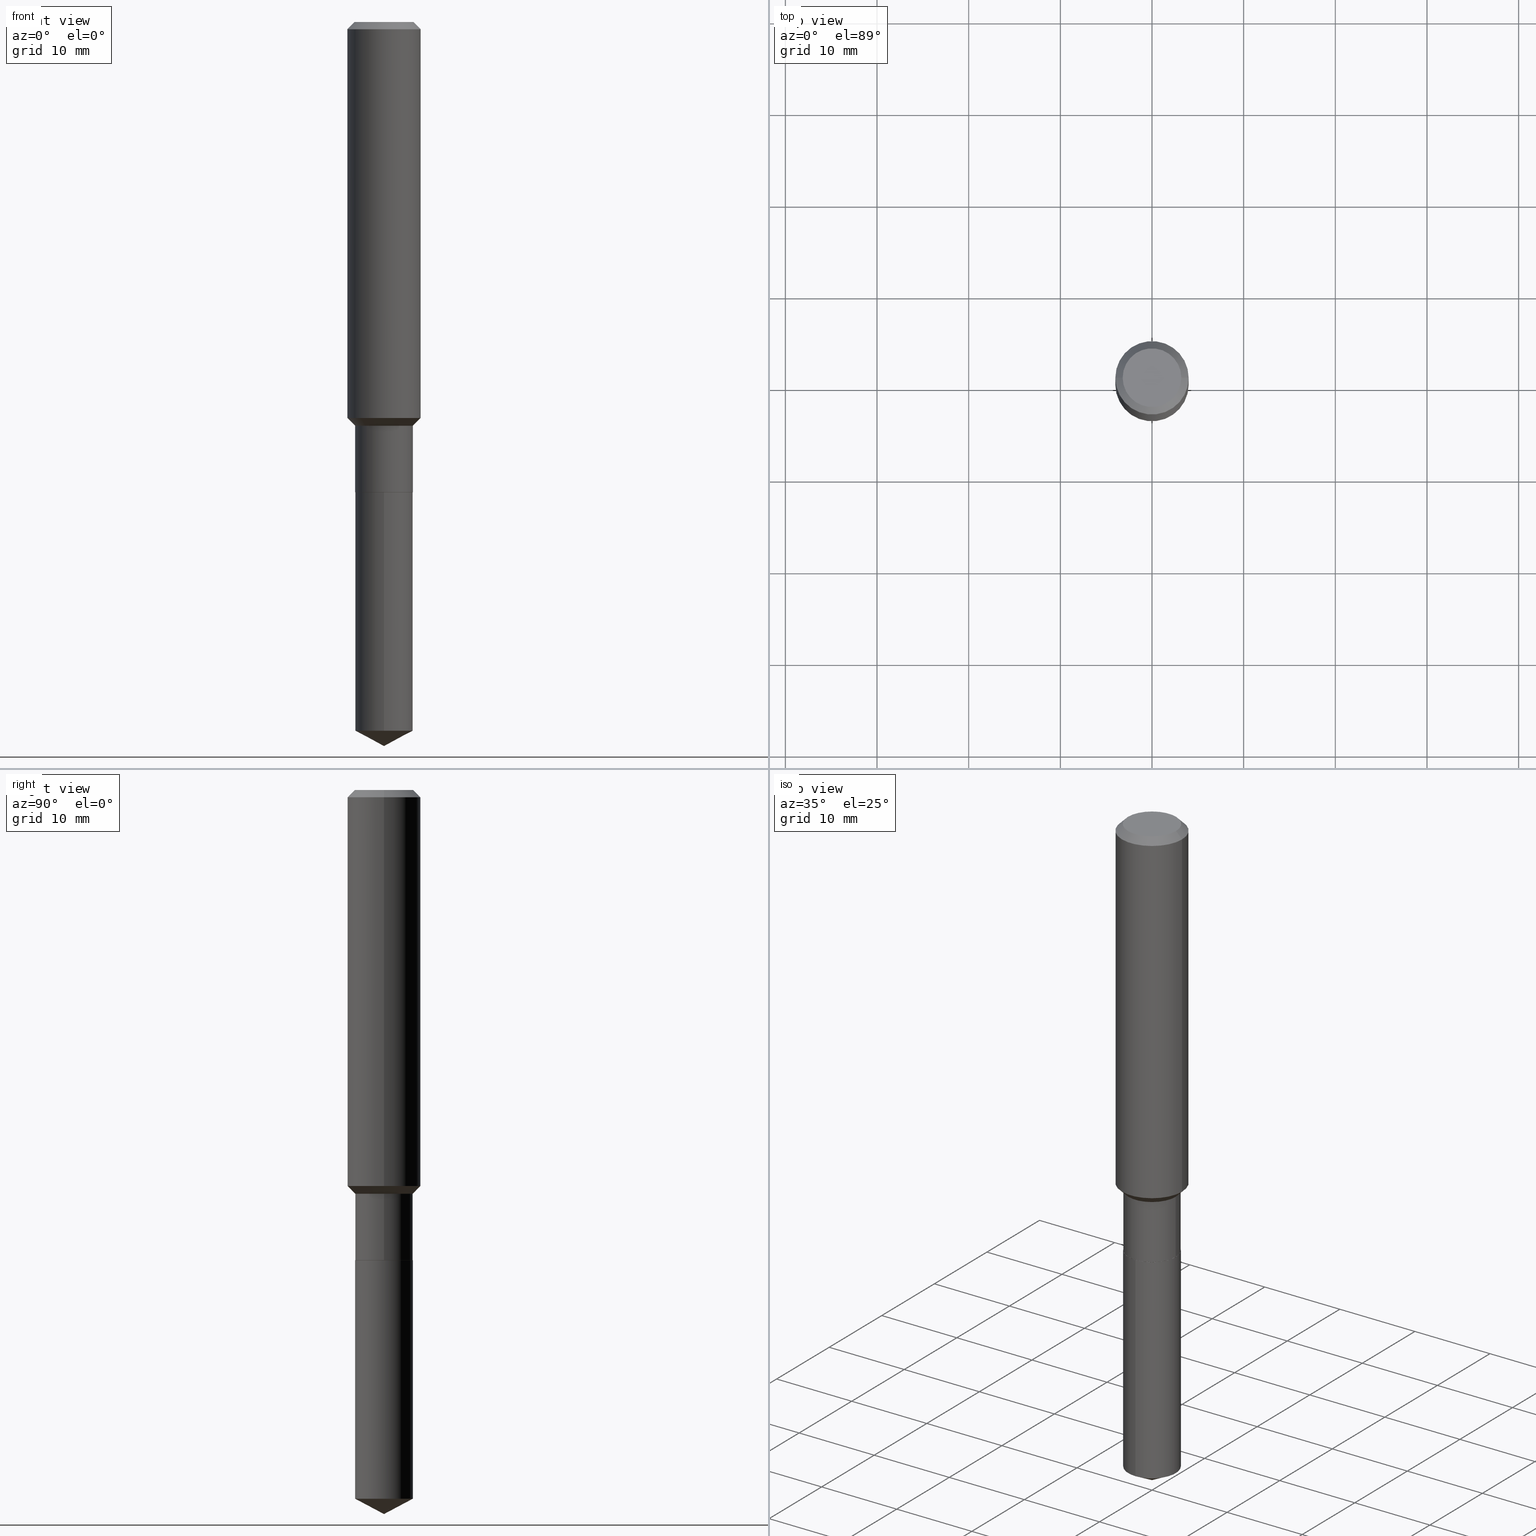
[diagram: canonical four-view strip — front | top / right | iso, engineering-drawing reading convention]
A machine part, canonical four-view strip (front | top / right | iso — engineering-drawing reading convention). The complete STEP part file that produces these views, byte-faithful:
ISO-10303-21;
HEADER;
FILE_DESCRIPTION (( 'STEP AP203' ),
    '1' );
FILE_NAME ('67633.STEP',
    '2024-04-25T07:49:21',
    ( '' ),
    ( '' ),
    'SwSTEP 2.0',
    'SolidWorks 2023',
    '' );
FILE_SCHEMA (( 'CONFIG_CONTROL_DESIGN' ));
ENDSEC;

DATA;
#1 = AXIS2_PLACEMENT_3D ( 'NONE', #10, #430, #411 ) ;
#2 = AXIS2_PLACEMENT_3D ( 'NONE', #466, #470, #227 ) ;
#3 = FACE_OUTER_BOUND ( 'NONE', #378, .T. ) ;
#4 = DIRECTION ( 'NONE',  ( 2.445582886674495317E-29, -3.491317969089325236E-15, -1.000000000000000000 ) ) ;
#5 = CLOSED_SHELL ( 'NONE', ( #334, #99, #449, #82, #55, #103, #456, #314, #448, #237, #36, #339 ) ) ;
#6 = DIRECTION ( 'NONE',  ( 1.000000000000000000, -6.982962677686265133E-15, 0.000000000000000000 ) ) ;
#7 = PERSON_AND_ORGANIZATION ( #296, #421 ) ;
#8 = DIRECTION ( 'NONE',  ( -2.445468806185136597E-29, 3.491481338843145583E-15, 1.000000000000000000 ) ) ;
#9 = ORIENTED_EDGE ( 'NONE', *, *, #368, .F. ) ;
#10 = CARTESIAN_POINT ( 'NONE',  ( 4.938868800971501707E-29, -7.051395711927616472E-15, -2.019600000000000062 ) ) ;
#11 = CARTESIAN_POINT ( 'NONE',  ( 4.159497892440299257E-29, -5.938660609238306710E-15, -1.700900000000000079 ) ) ;
#12 = ORIENTED_EDGE ( 'NONE', *, *, #368, .T. ) ;
#13 = EDGE_CURVE ( 'NONE', #319, #331, #168, .T. ) ;
#14 = FACE_OUTER_BOUND ( 'NONE', #21, .T. ) ;
#15 = CARTESIAN_POINT ( 'NONE',  ( 4.241421097447501822E-29, -6.055625234089552182E-15, -1.734400000000000164 ) ) ;
#16 = CONICAL_SURFACE ( 'NONE', #1, 0.1234999999999999987, 0.7853981633975678500 ) ;
#17 = FACE_OUTER_BOUND ( 'NONE', #51, .T. ) ;
#18 = ORIENTED_EDGE ( 'NONE', *, *, #432, .F. ) ;
#19 = DIRECTION ( 'NONE',  ( -6.982962677686265922E-15, -1.000000000000000000, 4.406206441393973340E-15 ) ) ;
#20 = DIRECTION ( 'NONE',  ( 1.000000000000000000, -6.982962677686269866E-15, 0.000000000000000000 ) ) ;
#21 = EDGE_LOOP ( 'NONE', ( #25, #264, #348, #317 ) ) ;
#22 = CARTESIAN_POINT ( 'NONE',  ( 7.444779400821120837E-29, -1.062883761907277980E-14, -3.044268030473976872 ) ) ;
#23 = AXIS2_PLACEMENT_3D ( 'NONE', #76, #447, #387 ) ;
#24 = CYLINDRICAL_SURFACE ( 'NONE', #77, 0.1575000000000000844 ) ;
#25 = ORIENTED_EDGE ( 'NONE', *, *, #46, .F. ) ;
#26 = CALENDAR_DATE ( 2024, 25, 4 ) ;
#27 = ORIENTED_EDGE ( 'NONE', *, *, #305, .F. ) ;
#28 = PLANE ( 'NONE',  #247 ) ;
#29 = MANIFOLD_SOLID_BREP ( 'Body-Move/Copy2[1]', #345 ) ;
#30 = ORIENTED_EDGE ( 'NONE', *, *, #149, .F. ) ;
#31 = CARTESIAN_POINT ( 'NONE',  ( 4.241421097447501822E-29, -6.055625234089552182E-15, -1.734400000000000164 ) ) ;
#32 = EDGE_CURVE ( 'NONE', #331, #256, #211, .T. ) ;
#33 = ORIENTED_EDGE ( 'NONE', *, *, #178, .F. ) ;
#34 = VECTOR ( 'NONE', #62, 39.37007874015748143 ) ;
#35 = CARTESIAN_POINT ( 'NONE',  ( 7.606251894135016417E-29, -1.085869714746161919E-14, -3.110199999999999854 ) ) ;
#36 = ADVANCED_FACE ( 'NONE', ( #272 ), #391, .F. ) ;
#37 = DIRECTION ( 'NONE',  ( 1.000000000000000000, -6.982962677686265922E-15, 0.000000000000000000 ) ) ;
#38 = ADVANCED_FACE ( 'NONE', ( #117 ), #84, .T. ) ;
#39 = AXIS2_PLACEMENT_3D ( 'NONE', #474, #469, #443 ) ;
#40 = EDGE_CURVE ( 'NONE', #98, #96, #121, .T. ) ;
#41 = AXIS2_PLACEMENT_3D ( 'NONE', #235, #370, #246 ) ;
#42 = CARTESIAN_POINT ( 'NONE',  ( 4.937646066568409466E-29, -7.049649971258195757E-15, -2.019099999999999895 ) ) ;
#43 = DIRECTION ( 'NONE',  ( 1.000000000000000000, -6.982962677686265133E-15, 0.000000000000000000 ) ) ;
#44 = DIRECTION ( 'NONE',  ( -2.445468806185136597E-29, 3.491481338843145583E-15, 1.000000000000000000 ) ) ;
#45 = CARTESIAN_POINT ( 'NONE',  ( 8.810729923425982785E-16, 0.1239999999999893548, -3.044268030473977760 ) ) ;
#46 = EDGE_CURVE ( 'NONE', #412, #171, #53, .T. ) ;
#47 = PERSON_AND_ORGANIZATION ( #296, #421 ) ;
#48 = VECTOR ( 'NONE', #292, 39.37007874015748143 ) ;
#49 = DIRECTION ( 'NONE',  ( -2.445468806185136597E-29, 3.491481338843145583E-15, 1.000000000000000000 ) ) ;
#50 = PERSON_AND_ORGANIZATION ( #296, #421 ) ;
#51 = EDGE_LOOP ( 'NONE', ( #54, #322, #277, #9 ) ) ;
#52 = CARTESIAN_POINT ( 'NONE',  ( 4.938868800971501707E-29, -7.051395711927616472E-15, -2.019600000000000062 ) ) ;
#53 = LINE ( 'NONE', #429, #451 ) ;
#54 = ORIENTED_EDGE ( 'NONE', *, *, #107, .T. ) ;
#55 = ADVANCED_FACE ( 'NONE', ( #120 ), #230, .T. ) ;
#56 = LINE ( 'NONE', #163, #213 ) ;
#57 = FACE_OUTER_BOUND ( 'NONE', #225, .T. ) ;
#58 = CARTESIAN_POINT ( 'NONE',  ( 4.938868800971501707E-29, -7.051395711927616472E-15, -2.019600000000000062 ) ) ;
#59 = CONICAL_SURFACE ( 'NONE', #140, 0.1575000000000000011, 0.7853981633974449483 ) ;
#60 = CIRCLE ( 'NONE', #302, 0.1239999999999999991 ) ;
#61 = LINE ( 'NONE', #205, #179 ) ;
#62 = DIRECTION ( 'NONE',  ( -2.445468806185136877E-29, 3.491481338843145188E-15, 1.000000000000000000 ) ) ;
#63 = VERTEX_POINT ( 'NONE', #114 ) ;
#64 = APPROVAL_DATE_TIME ( #413, #423 ) ;
#65 = PRODUCT_DEFINITION ( 'UNKNOWN', '', #89, #282 ) ;
#66 = ORIENTED_EDGE ( 'NONE', *, *, #149, .T. ) ;
#67 = COORDINATED_UNIVERSAL_TIME_OFFSET ( 5, 0, .BEHIND. ) ;
#68 = CONICAL_SURFACE ( 'NONE', #372, 74.04434902938348273, 1.082104136236486269 ) ;
#69 = EDGE_LOOP ( 'NONE', ( #360, #425, #18, #30 ) ) ;
#70 = DIRECTION ( 'NONE',  ( 1.000000000000000000, -6.982962677686265133E-15, 0.000000000000000000 ) ) ;
#71 = ORIENTED_EDGE ( 'NONE', *, *, #217, .F. ) ;
#72 = CC_DESIGN_PERSON_AND_ORGANIZATION_ASSIGNMENT ( #208, #253, ( #65 ) ) ;
#73 = DIRECTION ( 'NONE',  ( -2.445582886674495597E-29, 3.491317969089325236E-15, 1.000000000000000000 ) ) ;
#74 = ORIENTED_EDGE ( 'NONE', *, *, #320, .F. ) ;
#75 = PERSON_AND_ORGANIZATION_ROLE ( 'classification_officer' ) ;
#76 = CARTESIAN_POINT ( 'NONE',  ( 0.000000000000000000, 0.000000000000000000, 0.000000000000000000 ) ) ;
#77 = AXIS2_PLACEMENT_3D ( 'NONE', #255, #215, #136 ) ;
#78 = EDGE_CURVE ( 'NONE', #176, #297, #61, .T. ) ;
#79 = CONICAL_SURFACE ( 'NONE', #328, 0.1239999999999999575, 0.7853981633974508325 ) ;
#80 = AXIS2_PLACEMENT_3D ( 'NONE', #118, #242, #203 ) ;
#81 = CARTESIAN_POINT ( 'NONE',  ( 0.000000000000000000, 0.000000000000000000, 0.000000000000000000 ) ) ;
#82 = ADVANCED_FACE ( 'NONE', ( #422 ), #79, .T. ) ;
#83 = PLANE ( 'NONE',  #214 ) ;
#84 = CYLINDRICAL_SURFACE ( 'NONE', #300, 0.1239999999999999991 ) ;
#85 = CARTESIAN_POINT ( 'NONE',  ( 4.938868800971501707E-29, -7.051395711927616472E-15, -2.019600000000000062 ) ) ;
#86 = EDGE_CURVE ( 'NONE', #299, #129, #201, .T. ) ;
#87 = VERTEX_POINT ( 'NONE', #35 ) ;
#88 = CIRCLE ( 'NONE', #291, 0.1239999999999999991 ) ;
#89 = PRODUCT_DEFINITION_FORMATION_WITH_SPECIFIED_SOURCE ( 'ANY', '', #398, .NOT_KNOWN. ) ;
#90 = CARTESIAN_POINT ( 'NONE',  ( -8.867676931677782645E-28, 1.265944362609570079E-13, 36.25987874015748247 ) ) ;
#91 = DIRECTION ( 'NONE',  ( 1.000000000000000000, -6.982962677686265922E-15, 0.000000000000000000 ) ) ;
#92 = ORIENTED_EDGE ( 'NONE', *, *, #184, .T. ) ;
#93 = CARTESIAN_POINT ( 'NONE',  ( 0.1239999999999999575, -6.921512606122648718E-15, -1.734400000000000164 ) ) ;
#94 = AXIS2_PLACEMENT_3D ( 'NONE', #444, #263, #37 ) ;
#95 = CIRCLE ( 'NONE', #388, 0.1575000000000000011 ) ;
#96 = VERTEX_POINT ( 'NONE', #350 ) ;
#97 = CC_DESIGN_PERSON_AND_ORGANIZATION_ASSIGNMENT ( #47, #190, ( #89 ) ) ;
#98 = VERTEX_POINT ( 'NONE', #307 ) ;
#99 = ADVANCED_FACE ( 'NONE', ( #267 ), #59, .T. ) ;
#100 = EDGE_LOOP ( 'NONE', ( #192, #428, #271 ) ) ;
#101 = APPROVAL_STATUS ( 'not_yet_approved' ) ;
#102 = AXIS2_PLACEMENT_3D ( 'NONE', #81, #161, #274 ) ;
#103 = ADVANCED_FACE ( 'NONE', ( #365 ), #400, .T. ) ;
#104 = ORIENTED_EDGE ( 'NONE', *, *, #236, .F. ) ;
#105 = VECTOR ( 'NONE', #321, 39.37007874015748143 ) ;
#106 = DIRECTION ( 'NONE',  ( -0.7071067811865493491, 7.493145998870360471E-15, 0.7071067811865457964 ) ) ;
#107 = EDGE_CURVE ( 'NONE', #256, #331, #440, .T. ) ;
#108 = DIRECTION ( 'NONE',  ( -2.445468806185136597E-29, 3.491481338843145583E-15, 1.000000000000000000 ) ) ;
#109 = ORIENTED_EDGE ( 'NONE', *, *, #78, .F. ) ;
#110 = CIRCLE ( 'NONE', #80, 0.1239999999999999991 ) ;
#111 = LINE ( 'NONE', #311, #326 ) ;
#112 = ORIENTED_EDGE ( 'NONE', *, *, #107, .F. ) ;
#113 = DIRECTION ( 'NONE',  ( 1.000000000000000000, -6.982962677686265922E-15, 4.876281427513067258E-29 ) ) ;
#114 = CARTESIAN_POINT ( 'NONE',  ( -0.1260000000000000009, 9.348441284752484904E-16, 3.860086710906114178E-18 ) ) ;
#115 = ADVANCED_FACE ( 'NONE', ( #436 ), #281, .T. ) ;
#116 = CARTESIAN_POINT ( 'NONE',  ( -0.1239999999999999991, 8.810729923425242242E-16, -6.099479511916082446E-30 ) ) ;
#117 = FACE_OUTER_BOUND ( 'NONE', #174, .T. ) ;
#118 = CARTESIAN_POINT ( 'NONE',  ( 4.938868800971501707E-29, -7.051395711927616472E-15, -2.019600000000000062 ) ) ;
#119 = DIRECTION ( 'NONE',  ( 1.000000000000000000, -6.982962677686265922E-15, 0.000000000000000000 ) ) ;
#120 = FACE_OUTER_BOUND ( 'NONE', #383, .T. ) ;
#121 = CIRCLE ( 'NONE', #417, 0.1234999999999999987 ) ;
#122 = VECTOR ( 'NONE', #276, 39.37007874015748143 ) ;
#123 = LINE ( 'NONE', #431, #105 ) ;
#124 = CIRCLE ( 'NONE', #420, 0.1234999999999999987 ) ;
#125 = EDGE_CURVE ( 'NONE', #331, #234, #123, .T. ) ;
#126 = CARTESIAN_POINT ( 'NONE',  ( 7.605791100222397431E-29, -1.085935703057125161E-14, -3.110199999999999854 ) ) ;
#127 = LINE ( 'NONE', #116, #122 ) ;
#128 = CARTESIAN_POINT ( 'NONE',  ( 4.241421097447501822E-29, -6.055625234089552182E-15, -1.734400000000000164 ) ) ;
#129 = VERTEX_POINT ( 'NONE', #152 ) ;
#130 = DIRECTION ( 'NONE',  ( -2.445468806185136597E-29, 3.491481338843145583E-15, 1.000000000000000000 ) ) ;
#131 = APPROVAL_PERSON_ORGANIZATION ( #50, #454, #158 ) ;
#132 = ORIENTED_EDGE ( 'NONE', *, *, #146, .F. ) ;
#133 = COORDINATED_UNIVERSAL_TIME_OFFSET ( 5, 0, .BEHIND. ) ;
#134 = ORIENTED_EDGE ( 'NONE', *, *, #233, .F. ) ;
#135 = DIRECTION ( 'NONE',  ( -2.445468806185136877E-29, 3.491481338843145188E-15, 1.000000000000000000 ) ) ;
#136 = DIRECTION ( 'NONE',  ( 1.000000000000000000, -6.982962677686267499E-15, 4.876176775795936353E-29 ) ) ;
#137 = EDGE_LOOP ( 'NONE', ( #373, #450, #229, #216 ) ) ;
#138 = LENGTH_MEASURE_WITH_UNIT ( LENGTH_MEASURE( 0.02539999999999999897 ), #262 );
#139 = CARTESIAN_POINT ( 'NONE',  ( -0.1575000000000000011, -1.905216326883773903E-15, -0.03150000000000019451 ) ) ;
#140 = AXIS2_PLACEMENT_3D ( 'NONE', #157, #406, #284 ) ;
#141 = APPROVAL_PERSON_ORGANIZATION ( #143, #423, #342 ) ;
#142 = ORIENTED_EDGE ( 'NONE', *, *, #285, .T. ) ;
#143 = PERSON_AND_ORGANIZATION ( #296, #421 ) ;
#144 = DIMENSIONAL_EXPONENTS ( 1.000000000000000000, 0.000000000000000000, 0.000000000000000000, 0.000000000000000000, 0.000000000000000000, 0.000000000000000000, 0.000000000000000000 ) ;
#145 = ADVANCED_FACE ( 'NONE', ( #57 ), #83, .F. ) ;
#146 = EDGE_CURVE ( 'NONE', #96, #98, #124, .T. ) ;
#147 = AXIS2_PLACEMENT_3D ( 'NONE', #241, #316, #113 ) ;
#148 = CARTESIAN_POINT ( 'NONE',  ( 4.938868800971501707E-29, -7.051395711927616472E-15, -2.019600000000000062 ) ) ;
#149 = EDGE_CURVE ( 'NONE', #200, #486, #358, .T. ) ;
#150 = DIRECTION ( 'NONE',  ( -2.445468806185136597E-29, 3.491481338843145583E-15, 1.000000000000000000 ) ) ;
#151 = ORIENTED_EDGE ( 'NONE', *, *, #178, .T. ) ;
#152 = CARTESIAN_POINT ( 'NONE',  ( -0.1240000000000000269, -5.671564610331350140E-15, -2.019099999999999895 ) ) ;
#153 = ORIENTED_EDGE ( 'NONE', *, *, #169, .T. ) ;
#154 = SECURITY_CLASSIFICATION ( '', '', #361 ) ;
#155 = DIRECTION ( 'NONE',  ( -2.445582886674495597E-29, 3.491317969089325236E-15, 1.000000000000000000 ) ) ;
#156 = CARTESIAN_POINT ( 'NONE',  ( 4.938868800971501707E-29, -7.051395711927616472E-15, -2.019600000000000062 ) ) ;
#157 = CARTESIAN_POINT ( 'NONE',  ( 7.703226739483228723E-31, -1.099816621735597661E-16, -0.03150000000000019451 ) ) ;
#158 = APPROVAL_ROLE ( '' ) ;
#159 = ORIENTED_EDGE ( 'NONE', *, *, #169, .F. ) ;
#160 = EDGE_CURVE ( 'NONE', #171, #234, #238, .T. ) ;
#161 = DIRECTION ( 'NONE',  ( -2.445468806185136597E-29, 3.491481338843145583E-15, 1.000000000000000000 ) ) ;
#162 = CARTESIAN_POINT ( 'NONE',  ( 4.938868800971501707E-29, -7.051395711927616472E-15, -2.019600000000000062 ) ) ;
#163 = CARTESIAN_POINT ( 'NONE',  ( 7.606255934753707533E-29, -1.085869714746161919E-14, -3.110199999999999854 ) ) ;
#164 = DIRECTION ( 'NONE',  ( -6.982962677686265922E-15, -1.000000000000000000, 4.406206441393973340E-15 ) ) ;
#165 = AXIS2_PLACEMENT_3D ( 'NONE', #15, #187, #6 ) ;
#166 = FACE_OUTER_BOUND ( 'NONE', #137, .T. ) ;
#167 = DIRECTION ( 'NONE',  ( -2.445468806185136597E-29, 3.491481338843145583E-15, 1.000000000000000000 ) ) ;
#168 = LINE ( 'NONE', #453, #457 ) ;
#169 = EDGE_CURVE ( 'NONE', #319, #374, #260, .T. ) ;
#170 = APPLICATION_PROTOCOL_DEFINITION ( 'international standard', 'config_control_design', 1994, #363 ) ;
#171 = VERTEX_POINT ( 'NONE', #228 ) ;
#172 = DATE_AND_TIME ( #26, #476 ) ;
#173 = ORIENTED_EDGE ( 'NONE', *, *, #86, .T. ) ;
#174 = EDGE_LOOP ( 'NONE', ( #109, #151, #66, #382 ) ) ;
#175 = CARTESIAN_POINT ( 'NONE',  ( -8.658873720330475277E-16, -0.1240000000000070490, -2.019599999999999618 ) ) ;
#176 = VERTEX_POINT ( 'NONE', #45 ) ;
#177 = PERSON_AND_ORGANIZATION ( #296, #421 ) ;
#178 = EDGE_CURVE ( 'NONE', #176, #200, #88, .T. ) ;
#179 = VECTOR ( 'NONE', #224, 39.37007874015748143 ) ;
#180 = AXIS2_PLACEMENT_3D ( 'NONE', #128, #130, #43 ) ;
#181 = MANIFOLD_SOLID_BREP ( 'Body-Move/Copy2[2]', #5 ) ;
#182 = LOCAL_TIME ( 3, 49, 21.00000000000000000, #133 ) ;
#183 = VECTOR ( 'NONE', #369, 39.37007874015748143 ) ;
#184 = EDGE_CURVE ( 'NONE', #412, #63, #258, .T. ) ;
#185 = DIRECTION ( 'NONE',  ( -2.445468806185136597E-29, 3.491481338843145583E-15, 1.000000000000000000 ) ) ;
#186 = CYLINDRICAL_SURFACE ( 'NONE', #393, 0.1575000000000000844 ) ;
#187 = DIRECTION ( 'NONE',  ( -2.445468806185136597E-29, 3.491481338843145583E-15, 1.000000000000000000 ) ) ;
#188 = DIRECTION ( 'NONE',  ( -2.445468806185136597E-29, 3.491481338843145583E-15, 1.000000000000000000 ) ) ;
#189 = CC_DESIGN_APPROVAL ( #423, ( #65 ) ) ;
#190 = PERSON_AND_ORGANIZATION_ROLE ( 'design_supplier' ) ;
#191 = LINE ( 'NONE', #426, #335 ) ;
#192 = ORIENTED_EDGE ( 'NONE', *, *, #323, .F. ) ;
#193 = CC_DESIGN_DATE_AND_TIME_ASSIGNMENT ( #318, #371, ( #154 ) ) ;
#194 = APPROVAL_STATUS ( 'not_yet_approved' ) ;
#195 = EDGE_CURVE ( 'NONE', #63, #412, #273, .T. ) ;
#196 = APPROVAL_DATE_TIME ( #404, #454 ) ;
#197 = ORIENTED_EDGE ( 'NONE', *, *, #13, .T. ) ;
#198 = DIRECTION ( 'NONE',  ( 6.273719981627763710E-15, 0.8829475928589293199, 0.4694715627858859208 ) ) ;
#199 = DIRECTION ( 'NONE',  ( 6.982962677686265922E-15, 1.000000000000000000, -3.491317969089325236E-15 ) ) ;
#200 = VERTEX_POINT ( 'NONE', #395 ) ;
#201 = CIRCLE ( 'NONE', #355, 0.1240000000000000130 ) ;
#202 = CIRCLE ( 'NONE', #283, 0.1239999999999999991 ) ;
#203 = DIRECTION ( 'NONE',  ( -6.982962677686265922E-15, -1.000000000000000000, 4.406206441393973340E-15 ) ) ;
#204 = DIRECTION ( 'NONE',  ( -1.000000000000000000, 6.982962677686265922E-15, -4.876176775795935793E-29 ) ) ;
#205 = CARTESIAN_POINT ( 'NONE',  ( 8.810729923425734294E-16, 0.1239999999999929492, -2.019600000000000506 ) ) ;
#206 = EDGE_CURVE ( 'NONE', #63, #234, #191, .T. ) ;
#207 = ORIENTED_EDGE ( 'NONE', *, *, #305, .T. ) ;
#208 = PERSON_AND_ORGANIZATION ( #296, #421 ) ;
#209 = ORIENTED_EDGE ( 'NONE', *, *, #32, .T. ) ;
#210 = DIRECTION ( 'NONE',  ( -6.982962677686265922E-15, -1.000000000000000000, 4.406206441393973340E-15 ) ) ;
#211 = CIRCLE ( 'NONE', #94, 0.1575000000000001954 ) ;
#212 = APPROVAL_STATUS ( 'not_yet_approved' ) ;
#213 = VECTOR ( 'NONE', #198, 39.37007874015748854 ) ;
#214 = AXIS2_PLACEMENT_3D ( 'NONE', #52, #4, #199 ) ;
#215 = DIRECTION ( 'NONE',  ( -2.445468806185136597E-29, 3.491481338843145583E-15, 1.000000000000000000 ) ) ;
#216 = ORIENTED_EDGE ( 'NONE', *, *, #265, .F. ) ;
#217 = EDGE_CURVE ( 'NONE', #129, #319, #127, .T. ) ;
#218 = ORIENTED_EDGE ( 'NONE', *, *, #40, .F. ) ;
#219 = ORIENTED_EDGE ( 'NONE', *, *, #13, .F. ) ;
#220 = APPLICATION_PROTOCOL_DEFINITION ( 'international standard', 'config_control_design', 1994, #278 ) ;
#221 = DIRECTION ( 'NONE',  ( 1.000000000000000000, -6.982962677686265133E-15, 0.000000000000000000 ) ) ;
#222 = CIRCLE ( 'NONE', #433, 0.1240000000000000130 ) ;
#223 = LINE ( 'NONE', #477, #48 ) ;
#224 = DIRECTION ( 'NONE',  ( -2.445582886674495597E-29, 3.491317969089325236E-15, 1.000000000000000000 ) ) ;
#225 = EDGE_LOOP ( 'NONE', ( #290, #336 ) ) ;
#226 = AXIS2_PLACEMENT_3D ( 'NONE', #463, #403, #330 ) ;
#227 = DIRECTION ( 'NONE',  ( -6.982962677686265922E-15, -1.000000000000000000, 4.406206441393973340E-15 ) ) ;
#228 = CARTESIAN_POINT ( 'NONE',  ( 0.1575000000000000011, -1.209798283909146741E-15, -0.03150000000000019451 ) ) ;
#229 = ORIENTED_EDGE ( 'NONE', *, *, #86, .F. ) ;
#230 = CYLINDRICAL_SURFACE ( 'NONE', #41, 0.1239999999999999991 ) ;
#231 = ORIENTED_EDGE ( 'NONE', *, *, #184, .F. ) ;
#232 = PERSON_AND_ORGANIZATION_ROLE ( 'creator' ) ;
#233 = EDGE_CURVE ( 'NONE', #234, #171, #95, .T. ) ;
#234 = VERTEX_POINT ( 'NONE', #139 ) ;
#235 = CARTESIAN_POINT ( 'NONE',  ( 0.000000000000000000, 0.000000000000000000, 0.000000000000000000 ) ) ;
#236 = EDGE_CURVE ( 'NONE', #129, #299, #222, .T. ) ;
#237 = ADVANCED_FACE ( 'NONE', ( #484 ), #28, .F. ) ;
#238 = CIRCLE ( 'NONE', #309, 0.1575000000000000011 ) ;
#239 = CONICAL_SURFACE ( 'NONE', #353, 0.1234999999999999987, 0.7853981633975678500 ) ;
#240 = DIRECTION ( 'NONE',  ( -6.982962677686268288E-15, -1.000000000000000000, 3.541896320645563630E-15 ) ) ;
#241 = CARTESIAN_POINT ( 'NONE',  ( -9.439721640706201686E-47, 1.347742071746726764E-32, 3.860086710912459732E-18 ) ) ;
#242 = DIRECTION ( 'NONE',  ( -2.445582886674495597E-29, 3.491317969089325236E-15, 1.000000000000000000 ) ) ;
#243 = DIRECTION ( 'NONE',  ( 0.7071067811865451302, -7.319954787623248157E-15, -0.7071067811865499042 ) ) ;
#244 = DATE_AND_TIME ( #269, #487 ) ;
#245 = LINE ( 'NONE', #126, #346 ) ;
#246 = DIRECTION ( 'NONE',  ( 1.000000000000000000, -6.982962677686266711E-15, 4.876176775795935232E-29 ) ) ;
#247 = AXIS2_PLACEMENT_3D ( 'NONE', #475, #409, #204 ) ;
#248 = DIRECTION ( 'NONE',  ( -6.165590087286832874E-15, -0.8829475928589261002, 0.4694715627858920826 ) ) ;
#249 = ORIENTED_EDGE ( 'NONE', *, *, #46, .T. ) ;
#250 = FACE_OUTER_BOUND ( 'NONE', #340, .T. ) ;
#251 = ORIENTED_EDGE ( 'NONE', *, *, #490, .T. ) ;
#252 = DIRECTION ( 'NONE',  ( -2.445582886674495597E-29, 3.491317969089325236E-15, 1.000000000000000000 ) ) ;
#253 = PERSON_AND_ORGANIZATION_ROLE ( 'creator' ) ;
#254 = CARTESIAN_POINT ( 'NONE',  ( 4.937646066568409466E-29, -7.049649971258195757E-15, -2.019099999999999895 ) ) ;
#255 = CARTESIAN_POINT ( 'NONE',  ( 0.000000000000000000, 0.000000000000000000, 0.000000000000000000 ) ) ;
#256 = VERTEX_POINT ( 'NONE', #343 ) ;
#257 = APPROVAL_ROLE ( '' ) ;
#258 = CIRCLE ( 'NONE', #147, 0.1260000000000000009 ) ;
#259 = LOCAL_TIME ( 3, 49, 21.00000000000000000, #434 ) ;
#260 = CIRCLE ( 'NONE', #165, 0.1239999999999999575 ) ;
#261 = ORIENTED_EDGE ( 'NONE', *, *, #265, .T. ) ;
#262 =( LENGTH_UNIT ( ) NAMED_UNIT ( * ) SI_UNIT ( $, .METRE. ) );
#263 = DIRECTION ( 'NONE',  ( -2.445468806185136597E-29, 3.491481338843145583E-15, 1.000000000000000000 ) ) ;
#264 = ORIENTED_EDGE ( 'NONE', *, *, #195, .F. ) ;
#265 = EDGE_CURVE ( 'NONE', #96, #299, #375, .T. ) ;
#266 = VECTOR ( 'NONE', #341, 39.37007874015748143 ) ;
#267 = FACE_OUTER_BOUND ( 'NONE', #478, .T. ) ;
#268 = PRODUCT_DEFINITION_SHAPE ( 'NONE', 'NONE',  #65 ) ;
#269 = CALENDAR_DATE ( 2024, 25, 4 ) ;
#270 = DIRECTION ( 'NONE',  ( -2.438088387897960049E-29, 3.491481338843145188E-15, 1.000000000000000000 ) ) ;
#271 = ORIENTED_EDGE ( 'NONE', *, *, #275, .F. ) ;
#272 = FACE_OUTER_BOUND ( 'NONE', #405, .T. ) ;
#273 = CIRCLE ( 'NONE', #226, 0.1260000000000000009 ) ;
#274 = DIRECTION ( 'NONE',  ( 1.000000000000000000, -6.982962677686266711E-15, 4.876176775795935232E-29 ) ) ;
#275 = EDGE_CURVE ( 'NONE', #200, #176, #60, .T. ) ;
#276 = DIRECTION ( 'NONE',  ( -2.445468806185136877E-29, 3.491481338843145188E-15, 1.000000000000000000 ) ) ;
#277 = ORIENTED_EDGE ( 'NONE', *, *, #160, .F. ) ;
#278 = APPLICATION_CONTEXT ( 'configuration controlled 3d designs of mechanical parts and assemblies' ) ;
#279 = ORIENTED_EDGE ( 'NONE', *, *, #206, .F. ) ;
#280 = FACE_OUTER_BOUND ( 'NONE', #100, .T. ) ;
#281 = CYLINDRICAL_SURFACE ( 'NONE', #2, 0.1239999999999999991 ) ;
#282 = DESIGN_CONTEXT ( 'detailed design', #363, 'design' ) ;
#283 = AXIS2_PLACEMENT_3D ( 'NONE', #58, #367, #19 ) ;
#284 = DIRECTION ( 'NONE',  ( -1.000000000000000000, 6.982962677686265922E-15, 0.000000000000000000 ) ) ;
#285 = EDGE_CURVE ( 'NONE', #299, #374, #481, .T. ) ;
#286 = DIRECTION ( 'NONE',  ( 1.000000000000000000, -6.982962677686265922E-15, 0.000000000000000000 ) ) ;
#287 = CALENDAR_DATE ( 2024, 25, 4 ) ;
#288 = CARTESIAN_POINT ( 'NONE',  ( 0.000000000000000000, 0.000000000000000000, 0.000000000000000000 ) ) ;
#289 = DIRECTION ( 'NONE',  ( 1.000000000000000000, -6.982962677686265922E-15, 0.000000000000000000 ) ) ;
#290 = ORIENTED_EDGE ( 'NONE', *, *, #432, .T. ) ;
#291 = AXIS2_PLACEMENT_3D ( 'NONE', #396, #155, #164 ) ;
#292 = DIRECTION ( 'NONE',  ( 0.7071067811865493491, -2.468850131082275993E-15, 0.7071067811865457964 ) ) ;
#293 = ORIENTED_EDGE ( 'NONE', *, *, #490, .F. ) ;
#294 = CALENDAR_DATE ( 2024, 25, 4 ) ;
#295 = CC_DESIGN_PERSON_AND_ORGANIZATION_ASSIGNMENT ( #7, #75, ( #154 ) ) ;
#296 = PERSON ( 'UNSPECIFIED', 'UNSPECIFIED', 'UNSPECIFIED', ('UNSPECIFIED'), ('UNSPECIFIED'), ('UNSPECIFIED') ) ;
#297 = VERTEX_POINT ( 'NONE', #384 ) ;
#298 = PERSON_AND_ORGANIZATION ( #296, #421 ) ;
#299 = VERTEX_POINT ( 'NONE', #446 ) ;
#300 = AXIS2_PLACEMENT_3D ( 'NONE', #156, #468, #459 ) ;
#301 =( NAMED_UNIT ( * ) PLANE_ANGLE_UNIT ( ) SI_UNIT ( $, .RADIAN. ) );
#302 = AXIS2_PLACEMENT_3D ( 'NONE', #22, #252, #210 ) ;
#303 = ORIENTED_EDGE ( 'NONE', *, *, #32, .F. ) ;
#304 = CARTESIAN_POINT ( 'NONE',  ( 0.1239999999999999991, -8.658873720330970287E-16, 6.046459201986959935E-30 ) ) ;
#305 = EDGE_CURVE ( 'NONE', #374, #256, #223, .T. ) ;
#306 = CALENDAR_DATE ( 2024, 25, 4 ) ;
#307 = CARTESIAN_POINT ( 'NONE',  ( -0.1234999999999999987, -6.171226206089782734E-15, -2.019600000000000062 ) ) ;
#308 = ADVANCED_BREP_SHAPE_REPRESENTATION ( '67633', ( #29, #181, #23 ), #359 ) ;
#309 = AXIS2_PLACEMENT_3D ( 'NONE', #313, #49, #289 ) ;
#310 = AXIS2_PLACEMENT_3D ( 'NONE', #90, #356, #240 ) ;
#311 = CARTESIAN_POINT ( 'NONE',  ( -0.1234999999999999987, -6.173875433263893935E-15, -2.019600000000000062 ) ) ;
#312 = CARTESIAN_POINT ( 'NONE',  ( 0.1260000000000000009, -1.027466422270894443E-15, 3.860086710919128072E-18 ) ) ;
#313 = CARTESIAN_POINT ( 'NONE',  ( 7.703226739483228723E-31, -1.099816621735597661E-16, -0.03150000000000019451 ) ) ;
#314 = ADVANCED_FACE ( 'NONE', ( #377 ), #24, .T. ) ;
#315 = EDGE_LOOP ( 'NONE', ( #251, #197, #112, #27 ) ) ;
#316 = DIRECTION ( 'NONE',  ( -2.445468806185136597E-29, 3.491481338843145583E-15, 1.000000000000000000 ) ) ;
#317 = ORIENTED_EDGE ( 'NONE', *, *, #233, .T. ) ;
#318 = DATE_AND_TIME ( #294, #182 ) ;
#319 = VERTEX_POINT ( 'NONE', #352 ) ;
#320 = EDGE_CURVE ( 'NONE', #98, #129, #111, .T. ) ;
#321 = DIRECTION ( 'NONE',  ( -2.445468806185136877E-29, 3.491481338843145188E-15, 1.000000000000000000 ) ) ;
#322 = ORIENTED_EDGE ( 'NONE', *, *, #125, .T. ) ;
#323 = EDGE_CURVE ( 'NONE', #87, #200, #245, .T. ) ;
#324 = LINE ( 'NONE', #329, #34 ) ;
#325 = AXIS2_PLACEMENT_3D ( 'NONE', #148, #270, #351 ) ;
#326 = VECTOR ( 'NONE', #435, 39.37007874015748143 ) ;
#327 = EDGE_LOOP ( 'NONE', ( #71, #480, #142, #159 ) ) ;
#328 = AXIS2_PLACEMENT_3D ( 'NONE', #354, #108, #221 ) ;
#329 = CARTESIAN_POINT ( 'NONE',  ( 0.1575000000000000844, -1.099816621735587677E-15, 7.679978421878603638E-30 ) ) ;
#330 = DIRECTION ( 'NONE',  ( 1.000000000000000000, -6.982962677686265922E-15, 4.876281427513067258E-29 ) ) ;
#331 = VERTEX_POINT ( 'NONE', #408 ) ;
#332 = FACE_OUTER_BOUND ( 'NONE', #445, .T. ) ;
#333 = ORIENTED_EDGE ( 'NONE', *, *, #285, .F. ) ;
#334 = ADVANCED_FACE ( 'NONE', ( #166 ), #239, .T. ) ;
#335 = VECTOR ( 'NONE', #460, 39.37007874015748143 ) ;
#336 = ORIENTED_EDGE ( 'NONE', *, *, #397, .T. ) ;
#337 = CARTESIAN_POINT ( 'NONE',  ( 0.1234999999999999987, -7.913791602621870789E-15, -2.019600000000000062 ) ) ;
#338 =( CONVERSION_BASED_UNIT ( 'INCH', #138 ) LENGTH_UNIT ( ) NAMED_UNIT ( #144 ) );
#339 = ADVANCED_FACE ( 'NONE', ( #332 ), #16, .T. ) ;
#340 = EDGE_LOOP ( 'NONE', ( #219, #153, #207, #303 ) ) ;
#341 = DIRECTION ( 'NONE',  ( 0.7071067811866320607, -2.468850131083142557E-15, 0.7071067811864629737 ) ) ;
#342 = APPROVAL_ROLE ( '' ) ;
#343 = CARTESIAN_POINT ( 'NONE',  ( 0.1575000000000001954, -7.038477230973894979E-15, -1.700900000000000079 ) ) ;
#344 = EDGE_LOOP ( 'NONE', ( #416, #209, #12, #134 ) ) ;
#345 = CLOSED_SHELL ( 'NONE', ( #115, #473, #482, #38, #145 ) ) ;
#346 = VECTOR ( 'NONE', #248, 39.37007874015748854 ) ;
#347 = CC_DESIGN_SECURITY_CLASSIFICATION ( #154, ( #89 ) ) ;
#348 = ORIENTED_EDGE ( 'NONE', *, *, #206, .T. ) ;
#349 = PERSON_AND_ORGANIZATION_ROLE ( 'design_owner' ) ;
#350 = CARTESIAN_POINT ( 'NONE',  ( 0.1234999999999999987, -7.913791602621870789E-15, -2.019600000000000062 ) ) ;
#351 = DIRECTION ( 'NONE',  ( 1.000000000000000000, -6.982962677686265922E-15, 4.876176775795935793E-29 ) ) ;
#352 = CARTESIAN_POINT ( 'NONE',  ( -0.1239999999999999575, -5.671564610331350140E-15, -1.734400000000000164 ) ) ;
#353 = AXIS2_PLACEMENT_3D ( 'NONE', #364, #167, #437 ) ;
#354 = CARTESIAN_POINT ( 'NONE',  ( 4.241421097447501822E-29, -6.055625234089552182E-15, -1.734400000000000164 ) ) ;
#355 = AXIS2_PLACEMENT_3D ( 'NONE', #42, #185, #389 ) ;
#356 = DIRECTION ( 'NONE',  ( -2.445582886674495597E-29, 3.491317969089325236E-15, 1.000000000000000000 ) ) ;
#357 = COORDINATED_UNIVERSAL_TIME_OFFSET ( 5, 0, .BEHIND. ) ;
#358 = LINE ( 'NONE', #362, #183 ) ;
#359 =( GEOMETRIC_REPRESENTATION_CONTEXT ( 3 ) GLOBAL_UNCERTAINTY_ASSIGNED_CONTEXT ( ( #465 ) ) GLOBAL_UNIT_ASSIGNED_CONTEXT ( ( #338, #301, #385 ) ) REPRESENTATION_CONTEXT ( 'NONE', 'WORKASPACE' ) );
#360 = ORIENTED_EDGE ( 'NONE', *, *, #275, .T. ) ;
#361 = SECURITY_CLASSIFICATION_LEVEL ( 'unclassified' ) ;
#362 = CARTESIAN_POINT ( 'NONE',  ( -8.658873720330475277E-16, -0.1240000000000070490, -2.019599999999999618 ) ) ;
#363 = APPLICATION_CONTEXT ( 'configuration controlled 3d designs of mechanical parts and assemblies' ) ;
#364 = CARTESIAN_POINT ( 'NONE',  ( 4.938868800971501707E-29, -7.051395711927616472E-15, -2.019600000000000062 ) ) ;
#365 = FACE_OUTER_BOUND ( 'NONE', #327, .T. ) ;
#366 = SHAPE_DEFINITION_REPRESENTATION ( #268, #308 ) ;
#367 = DIRECTION ( 'NONE',  ( -2.445582886674495597E-29, 3.491317969089325236E-15, 1.000000000000000000 ) ) ;
#368 = EDGE_CURVE ( 'NONE', #256, #171, #324, .T. ) ;
#369 = DIRECTION ( 'NONE',  ( -2.445582886674495597E-29, 3.491317969089325236E-15, 1.000000000000000000 ) ) ;
#370 = DIRECTION ( 'NONE',  ( -2.445468806185136597E-29, 3.491481338843145583E-15, 1.000000000000000000 ) ) ;
#371 = DATE_TIME_ROLE ( 'classification_date' ) ;
#372 = AXIS2_PLACEMENT_3D ( 'NONE', #462, #73, #376 ) ;
#373 = ORIENTED_EDGE ( 'NONE', *, *, #146, .T. ) ;
#374 = VERTEX_POINT ( 'NONE', #93 ) ;
#375 = LINE ( 'NONE', #337, #266 ) ;
#376 = DIRECTION ( 'NONE',  ( -6.982962677686268288E-15, -1.000000000000000000, 3.541896320645563630E-15 ) ) ;
#377 = FACE_OUTER_BOUND ( 'NONE', #344, .T. ) ;
#378 = EDGE_LOOP ( 'NONE', ( #485, #386, #33 ) ) ;
#379 = APPROVAL_PERSON_ORGANIZATION ( #298, #394, #257 ) ;
#380 = CC_DESIGN_APPROVAL ( #454, ( #154 ) ) ;
#381 = DIRECTION ( 'NONE',  ( -2.445468806185136597E-29, 3.491481338843145583E-15, 1.000000000000000000 ) ) ;
#382 = ORIENTED_EDGE ( 'NONE', *, *, #397, .F. ) ;
#383 = EDGE_LOOP ( 'NONE', ( #173, #402, #293, #333 ) ) ;
#384 = CARTESIAN_POINT ( 'NONE',  ( 8.810729923425987715E-16, 0.1239999999999929492, -2.019600000000000506 ) ) ;
#385 =( NAMED_UNIT ( * ) SI_UNIT ( $, .STERADIAN. ) SOLID_ANGLE_UNIT ( ) );
#386 = ORIENTED_EDGE ( 'NONE', *, *, #323, .T. ) ;
#387 = DIRECTION ( 'NONE',  ( 1.000000000000000000, 0.000000000000000000, 0.000000000000000000 ) ) ;
#388 = AXIS2_PLACEMENT_3D ( 'NONE', #427, #8, #438 ) ;
#389 = DIRECTION ( 'NONE',  ( 1.000000000000000000, -6.982962677686269866E-15, 0.000000000000000000 ) ) ;
#390 = CC_DESIGN_DATE_AND_TIME_ASSIGNMENT ( #172, #483, ( #65 ) ) ;
#391 = PLANE ( 'NONE',  #325 ) ;
#392 = AXIS2_PLACEMENT_3D ( 'NONE', #11, #188, #119 ) ;
#393 = AXIS2_PLACEMENT_3D ( 'NONE', #288, #150, #472 ) ;
#394 = APPROVAL ( #101, 'UNSPECIFIED' ) ;
#395 = CARTESIAN_POINT ( 'NONE',  ( -8.658873720330223828E-16, -0.1240000000000106156, -3.044268030473976427 ) ) ;
#396 = CARTESIAN_POINT ( 'NONE',  ( 7.444779400821120837E-29, -1.062883761907277980E-14, -3.044268030473976872 ) ) ;
#397 = EDGE_CURVE ( 'NONE', #297, #486, #110, .T. ) ;
#398 = PRODUCT ( '67633', '67633', '', ( #489 ) ) ;
#399 = EDGE_LOOP ( 'NONE', ( #442, #92 ) ) ;
#400 = CYLINDRICAL_SURFACE ( 'NONE', #102, 0.1239999999999999991 ) ;
#401 = CONICAL_SURFACE ( 'NONE', #310, 74.04434902938348273, 1.082104136236486269 ) ;
#402 = ORIENTED_EDGE ( 'NONE', *, *, #217, .T. ) ;
#403 = DIRECTION ( 'NONE',  ( -2.445468806185136597E-29, 3.491481338843145583E-15, 1.000000000000000000 ) ) ;
#404 = DATE_AND_TIME ( #287, #259 ) ;
#405 = EDGE_LOOP ( 'NONE', ( #132, #218 ) ) ;
#406 = DIRECTION ( 'NONE',  ( 2.445468806185136597E-29, -3.491481338843145583E-15, -1.000000000000000000 ) ) ;
#407 = APPROVAL_DATE_TIME ( #244, #394 ) ;
#408 = CARTESIAN_POINT ( 'NONE',  ( -0.1575000000000001954, -4.819555800416148317E-15, -1.700900000000000079 ) ) ;
#409 = DIRECTION ( 'NONE',  ( 2.438088387897960049E-29, -3.491481338843145188E-15, -1.000000000000000000 ) ) ;
#410 = CC_DESIGN_PERSON_AND_ORGANIZATION_ASSIGNMENT ( #439, #232, ( #89 ) ) ;
#411 = DIRECTION ( 'NONE',  ( 1.000000000000000000, -6.982962677686265922E-15, 0.000000000000000000 ) ) ;
#412 = VERTEX_POINT ( 'NONE', #312 ) ;
#413 = DATE_AND_TIME ( #306, #424 ) ;
#414 = EDGE_CURVE ( 'NONE', #87, #176, #56, .T. ) ;
#415 = ORIENTED_EDGE ( 'NONE', *, *, #160, .T. ) ;
#416 = ORIENTED_EDGE ( 'NONE', *, *, #125, .F. ) ;
#417 = AXIS2_PLACEMENT_3D ( 'NONE', #162, #464, #286 ) ;
#418 = CC_DESIGN_APPROVAL ( #394, ( #89 ) ) ;
#419 = DIRECTION ( 'NONE',  ( -2.445468806185136597E-29, 3.491481338843145583E-15, 1.000000000000000000 ) ) ;
#420 = AXIS2_PLACEMENT_3D ( 'NONE', #85, #44, #91 ) ;
#421 = ORGANIZATION ( 'UNSPECIFIED', 'UNSPECIFIED', '' ) ;
#422 = FACE_OUTER_BOUND ( 'NONE', #315, .T. ) ;
#423 = APPROVAL ( #212, 'UNSPECIFIED' ) ;
#424 = LOCAL_TIME ( 3, 49, 21.00000000000000000, #479 ) ;
#425 = ORIENTED_EDGE ( 'NONE', *, *, #78, .T. ) ;
#426 = CARTESIAN_POINT ( 'NONE',  ( -0.1575000000000000011, 9.898349595620272334E-16, -0.03150000000000019451 ) ) ;
#427 = CARTESIAN_POINT ( 'NONE',  ( 7.703226739483228723E-31, -1.099816621735597661E-16, -0.03150000000000019451 ) ) ;
#428 = ORIENTED_EDGE ( 'NONE', *, *, #414, .T. ) ;
#429 = CARTESIAN_POINT ( 'NONE',  ( 0.1575000000000000011, -1.190510096822576026E-15, -0.03150000000000019451 ) ) ;
#430 = DIRECTION ( 'NONE',  ( -2.445468806185136597E-29, 3.491481338843145583E-15, 1.000000000000000000 ) ) ;
#431 = CARTESIAN_POINT ( 'NONE',  ( -0.1575000000000000844, 1.119104808822158392E-15, -7.747322767151481189E-30 ) ) ;
#432 = EDGE_CURVE ( 'NONE', #486, #297, #202, .T. ) ;
#433 = AXIS2_PLACEMENT_3D ( 'NONE', #254, #381, #20 ) ;
#434 = COORDINATED_UNIVERSAL_TIME_OFFSET ( 5, 0, .BEHIND. ) ;
#435 = DIRECTION ( 'NONE',  ( -0.7071067811866320607, 7.493145998870660238E-15, 0.7071067811864629737 ) ) ;
#436 = FACE_OUTER_BOUND ( 'NONE', #69, .T. ) ;
#437 = DIRECTION ( 'NONE',  ( 1.000000000000000000, -6.982962677686265922E-15, 0.000000000000000000 ) ) ;
#438 = DIRECTION ( 'NONE',  ( 1.000000000000000000, -6.982962677686265922E-15, 0.000000000000000000 ) ) ;
#439 = PERSON_AND_ORGANIZATION ( #296, #421 ) ;
#440 = CIRCLE ( 'NONE', #392, 0.1575000000000001954 ) ;
#441 = CIRCLE ( 'NONE', #458, 0.1239999999999999575 ) ;
#442 = ORIENTED_EDGE ( 'NONE', *, *, #195, .T. ) ;
#443 = DIRECTION ( 'NONE',  ( -1.000000000000000000, 6.982962677686265922E-15, 0.000000000000000000 ) ) ;
#444 = CARTESIAN_POINT ( 'NONE',  ( 4.159497892440299257E-29, -5.938660609238306710E-15, -1.700900000000000079 ) ) ;
#445 = EDGE_LOOP ( 'NONE', ( #74, #488, #261, #104 ) ) ;
#446 = CARTESIAN_POINT ( 'NONE',  ( 0.1240000000000000130, -7.915537343291293082E-15, -2.019099999999999895 ) ) ;
#447 = DIRECTION ( 'NONE',  ( 0.000000000000000000, 0.000000000000000000, 1.000000000000000000 ) ) ;
#448 = ADVANCED_FACE ( 'NONE', ( #14 ), #467, .T. ) ;
#449 = ADVANCED_FACE ( 'NONE', ( #17 ), #186, .T. ) ;
#450 = ORIENTED_EDGE ( 'NONE', *, *, #320, .T. ) ;
#451 = VECTOR ( 'NONE', #243, 39.37007874015748143 ) ;
#452 = VECTOR ( 'NONE', #135, 39.37007874015748143 ) ;
#453 = CARTESIAN_POINT ( 'NONE',  ( -0.1239999999999999575, -5.174552241747027958E-15, -1.734400000000000164 ) ) ;
#454 = APPROVAL ( #194, 'UNSPECIFIED' ) ;
#455 = CONICAL_SURFACE ( 'NONE', #180, 0.1239999999999999575, 0.7853981633974508325 ) ;
#456 = ADVANCED_FACE ( 'NONE', ( #250 ), #455, .T. ) ;
#457 = VECTOR ( 'NONE', #106, 39.37007874015748143 ) ;
#458 = AXIS2_PLACEMENT_3D ( 'NONE', #31, #419, #70 ) ;
#459 = DIRECTION ( 'NONE',  ( -6.982962677686265922E-15, -1.000000000000000000, 4.406206441393973340E-15 ) ) ;
#460 = DIRECTION ( 'NONE',  ( -0.7071067811865451302, 2.468850131082231817E-15, -0.7071067811865499042 ) ) ;
#461 = CC_DESIGN_PERSON_AND_ORGANIZATION_ASSIGNMENT ( #177, #349, ( #398 ) ) ;
#462 = CARTESIAN_POINT ( 'NONE',  ( -8.867676931677782645E-28, 1.265944362609570079E-13, 36.25987874015748247 ) ) ;
#463 = CARTESIAN_POINT ( 'NONE',  ( -9.439721640706201686E-47, 1.347742071746726764E-32, 3.860086710912459732E-18 ) ) ;
#464 = DIRECTION ( 'NONE',  ( -2.445468806185136597E-29, 3.491481338843145583E-15, 1.000000000000000000 ) ) ;
#465 = UNCERTAINTY_MEASURE_WITH_UNIT (LENGTH_MEASURE( 1.000000000000000082E-05 ), #338, 'distance_accuracy_value', 'NONE');
#466 = CARTESIAN_POINT ( 'NONE',  ( 4.938868800971501707E-29, -7.051395711927616472E-15, -2.019600000000000062 ) ) ;
#467 = CONICAL_SURFACE ( 'NONE', #39, 0.1575000000000000011, 0.7853981633974449483 ) ;
#468 = DIRECTION ( 'NONE',  ( -2.445582886674495597E-29, 3.491317969089325236E-15, 1.000000000000000000 ) ) ;
#469 = DIRECTION ( 'NONE',  ( 2.445468806185136597E-29, -3.491481338843145583E-15, -1.000000000000000000 ) ) ;
#470 = DIRECTION ( 'NONE',  ( -2.445582886674495597E-29, 3.491317969089325236E-15, 1.000000000000000000 ) ) ;
#471 = PRODUCT_RELATED_PRODUCT_CATEGORY ( 'detail', '', ( #398 ) ) ;
#472 = DIRECTION ( 'NONE',  ( 1.000000000000000000, -6.982962677686267499E-15, 4.876176775795936353E-29 ) ) ;
#473 = ADVANCED_FACE ( 'NONE', ( #280 ), #401, .T. ) ;
#474 = CARTESIAN_POINT ( 'NONE',  ( 7.703226739483228723E-31, -1.099816621735597661E-16, -0.03150000000000019451 ) ) ;
#475 = CARTESIAN_POINT ( 'NONE',  ( -4.719860820353100843E-47, 6.738710358733633822E-33, 1.930043355456229866E-18 ) ) ;
#476 = LOCAL_TIME ( 3, 49, 21.00000000000000000, #67 ) ;
#477 = CARTESIAN_POINT ( 'NONE',  ( 0.1239999999999999575, -6.921512606122648718E-15, -1.734400000000000164 ) ) ;
#478 = EDGE_LOOP ( 'NONE', ( #231, #249, #415, #279 ) ) ;
#479 = COORDINATED_UNIVERSAL_TIME_OFFSET ( 5, 0, .BEHIND. ) ;
#480 = ORIENTED_EDGE ( 'NONE', *, *, #236, .T. ) ;
#481 = LINE ( 'NONE', #304, #452 ) ;
#482 = ADVANCED_FACE ( 'NONE', ( #3 ), #68, .T. ) ;
#483 = DATE_TIME_ROLE ( 'creation_date' ) ;
#484 = FACE_OUTER_BOUND ( 'NONE', #399, .T. ) ;
#485 = ORIENTED_EDGE ( 'NONE', *, *, #414, .F. ) ;
#486 = VERTEX_POINT ( 'NONE', #175 ) ;
#487 = LOCAL_TIME ( 3, 49, 21.00000000000000000, #357 ) ;
#488 = ORIENTED_EDGE ( 'NONE', *, *, #40, .T. ) ;
#489 = MECHANICAL_CONTEXT ( 'NONE', #278, 'mechanical' ) ;
#490 = EDGE_CURVE ( 'NONE', #374, #319, #441, .T. ) ;
ENDSEC;
END-ISO-10303-21;
